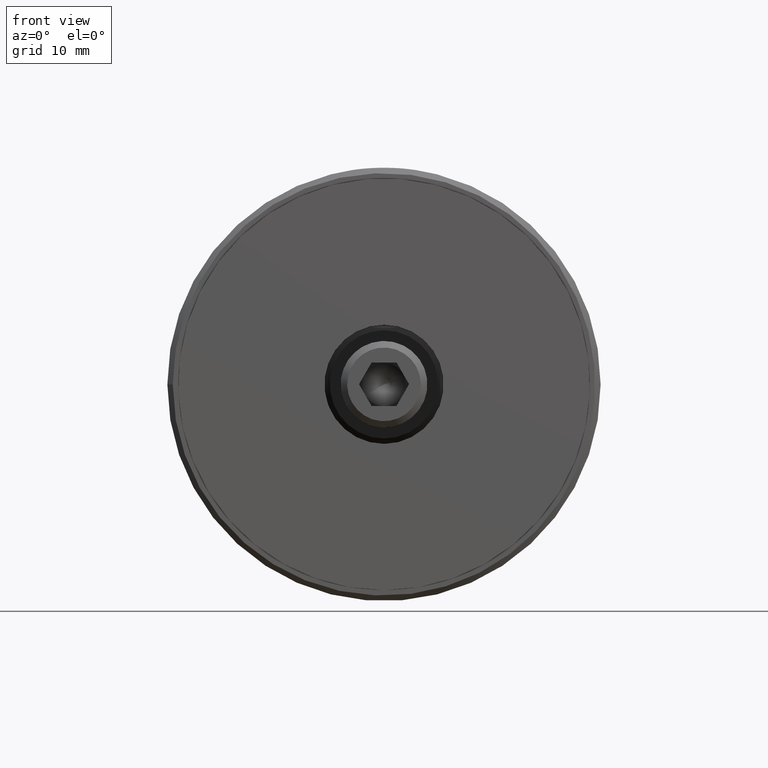
[diagram: clean part render]
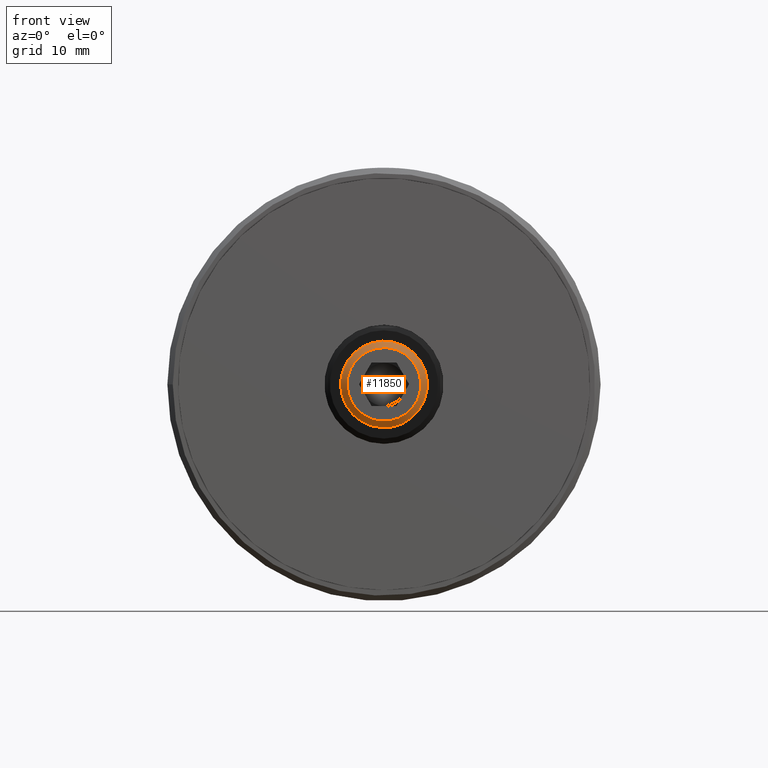
[diagram: same view with one face highlighted and labeled with its STEP entity id]
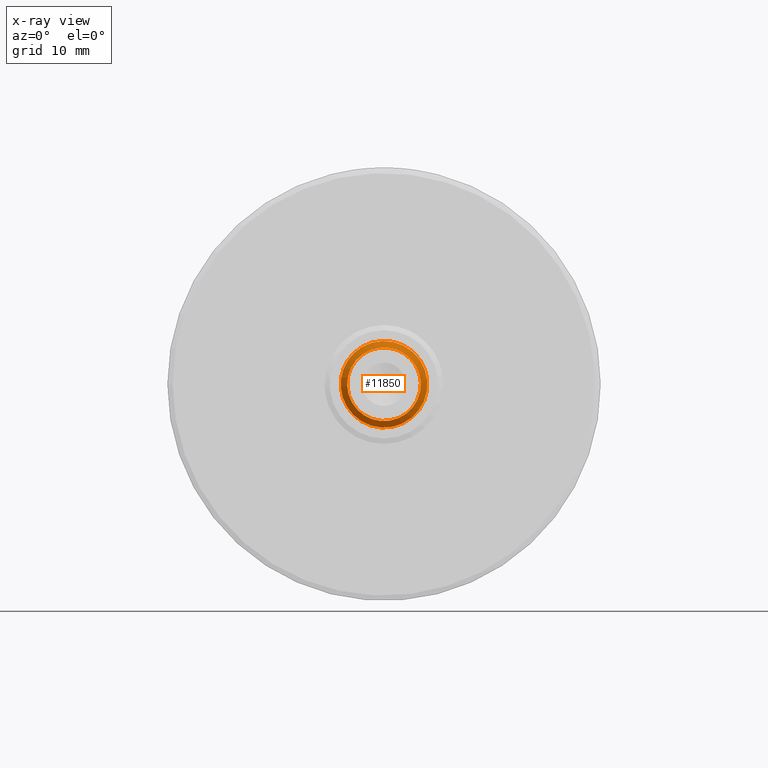
[diagram: x-ray of the same camera — body ghosted, the highlighted face saturated]
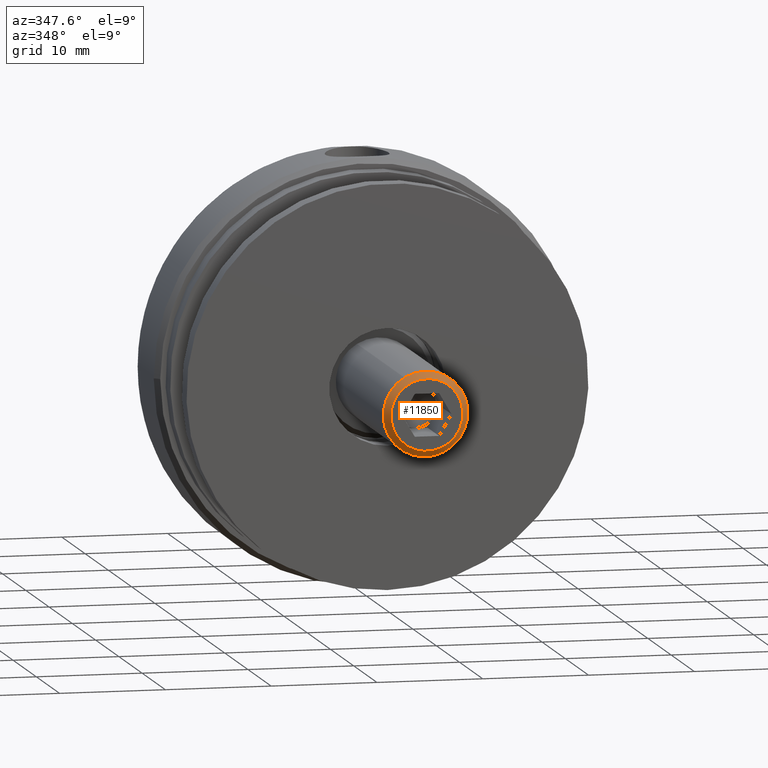
[diagram: same view with one face highlighted and labeled with its STEP entity id]
A machine part, front view. The second image highlights one B-rep face of the part: STEP entity #11850.
The next image is the same camera in x-ray: the body ghosted, the highlighted face saturated — about 0% of this face is hidden behind the body in this view.
A second angle (auxiliary view) of the same face is appended — the face is thin or edge-on in the first view.
In plain terms, the highlighted conical surface has half-angle 45 deg.
Its self-contained STEP definition (entity closure, byte-faithful):
#250 = CARTESIAN_POINT ( 'NONE',  ( 30.00000000000000000, 0.000000000000000000, -3.400000000000000799 ) ) ;
#338 = DIRECTION ( 'NONE',  ( 0.000000000000000000, 0.000000000000000000, -1.000000000000000000 ) ) ;
#2063 = FACE_OUTER_BOUND ( 'NONE', #6922, .T. ) ;
#2228 = FACE_BOUND ( 'NONE', #8265, .T. ) ;
#2707 = ORIENTED_EDGE ( 'NONE', *, *, #3751, .F. ) ;
#3364 = DIRECTION ( 'NONE',  ( 1.000000000000000000, 0.000000000000000000, 0.000000000000000000 ) ) ;
#3369 = CARTESIAN_POINT ( 'NONE',  ( 29.39999999999999503, 0.000000000000000000, -4.000000000000000000 ) ) ;
#3617 = EDGE_CURVE ( 'NONE', #4511, #4511, #7133, .T. ) ;
#3751 = EDGE_CURVE ( 'NONE', #5184, #5184, #4305, .T. ) ;
#4305 = CIRCLE ( 'NONE', #12141, 4.000000000000000000 ) ;
#4489 = CARTESIAN_POINT ( 'NONE',  ( 30.00000000000000000, 0.000000000000000000, 0.000000000000000000 ) ) ;
#4511 = VERTEX_POINT ( 'NONE', #250 ) ;
#5184 = VERTEX_POINT ( 'NONE', #3369 ) ;
#5418 = DIRECTION ( 'NONE',  ( 0.000000000000000000, 0.000000000000000000, -1.000000000000000000 ) ) ;
#5636 = CARTESIAN_POINT ( 'NONE',  ( 29.39999999999999503, 0.000000000000000000, 0.000000000000000000 ) ) ;
#5871 = CARTESIAN_POINT ( 'NONE',  ( 30.00000000000000000, 0.000000000000000000, 0.000000000000000000 ) ) ;
#6502 = AXIS2_PLACEMENT_3D ( 'NONE', #5871, #9941, #9247 ) ;
#6672 = DIRECTION ( 'NONE',  ( -1.000000000000000000, 0.000000000000000000, 0.000000000000000000 ) ) ;
#6877 = CONICAL_SURFACE ( 'NONE', #6502, 3.400000000000000799, 0.7853981633974450594 ) ;
#6922 = EDGE_LOOP ( 'NONE', ( #2707 ) ) ;
#7133 = CIRCLE ( 'NONE', #9294, 3.400000000000000799 ) ;
#8265 = EDGE_LOOP ( 'NONE', ( #12825 ) ) ;
#9247 = DIRECTION ( 'NONE',  ( 0.000000000000000000, 0.000000000000000000, 1.000000000000000000 ) ) ;
#9294 = AXIS2_PLACEMENT_3D ( 'NONE', #4489, #3364, #5418 ) ;
#9941 = DIRECTION ( 'NONE',  ( -1.000000000000000000, 0.000000000000000000, 0.000000000000000000 ) ) ;
#11850 = ADVANCED_FACE ( 'NONE', ( #2063, #2228 ), #6877, .T. ) ;
#12141 = AXIS2_PLACEMENT_3D ( 'NONE', #5636, #6672, #338 ) ;
#12825 = ORIENTED_EDGE ( 'NONE', *, *, #3617, .F. ) ;